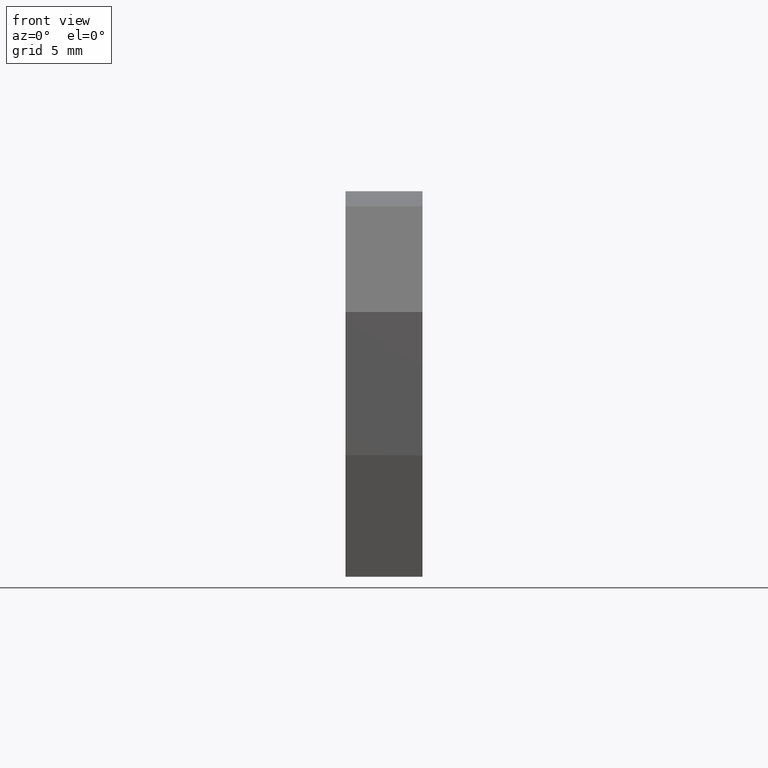
[diagram: clean part render]
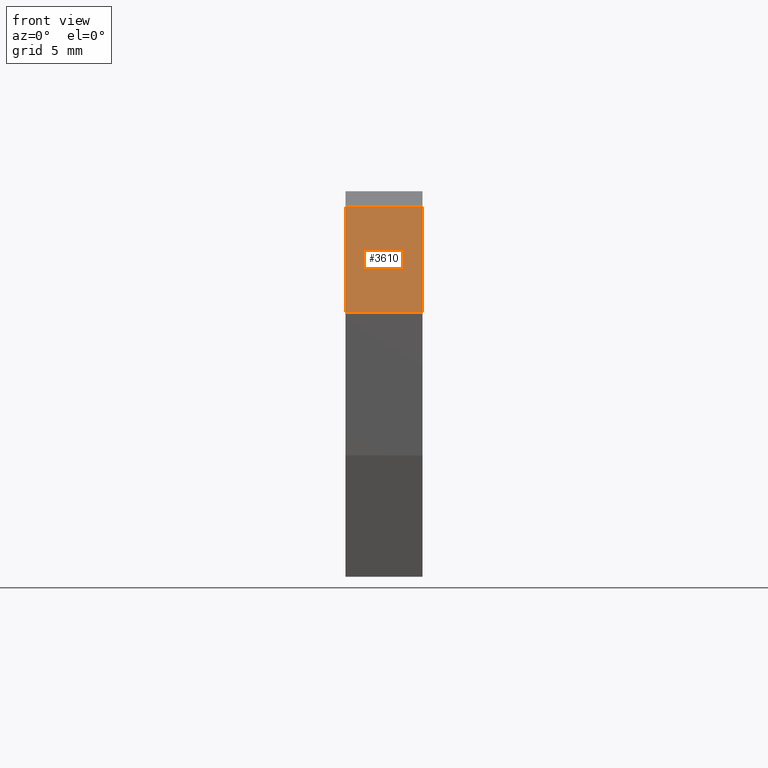
[diagram: same view with one face highlighted and labeled with its STEP entity id]
A machine part, front view. The second image highlights one B-rep face of the part: STEP entity #3610.
In plain terms, the highlighted planar face has unit normal (0, -0.866, 0.5).
Its self-contained STEP definition (entity closure, byte-faithful):
#200=CARTESIAN_POINT('',(38.471795037691,80.6770330370464,
4.00000000000001));
#210=VERTEX_POINT('',#200);
#240=CARTESIAN_POINT('',(35.2278374967297,86.2957323155951,
4.00000000000001));
#250=DIRECTION('',(-0.4999999999995,0.866025403784727,0.));
#260=VECTOR('',#250,1.);
#270=LINE('',#240,#260);
#280=CARTESIAN_POINT('',(35.305351863756,86.1614734935887,
4.00000000000001));
#290=VERTEX_POINT('',#280);
#300=EDGE_CURVE('',#210,#290,#270,.T.);
#1550=CARTESIAN_POINT('',(35.305351863756,86.1614734935887,
8.00000000000001));
#1560=VERTEX_POINT('',#1550);
#1590=CARTESIAN_POINT('',(35.2278374967297,86.2957323155951,
8.00000000000001));
#1600=DIRECTION('',(-0.4999999999995,0.866025403784727,0.));
#1610=VECTOR('',#1600,1.);
#1620=LINE('',#1590,#1610);
#1630=CARTESIAN_POINT('',(38.471795037691,80.6770330370464,
8.00000000000001));
#1640=VERTEX_POINT('',#1630);
#1650=EDGE_CURVE('',#1640,#1560,#1620,.T.);
#3050=CARTESIAN_POINT('',(38.471795037691,80.6770330370464,
4.00000000000001));
#3060=DIRECTION('',(0.,0.,-1.));
#3070=VECTOR('',#3060,1.);
#3080=LINE('',#3050,#3070);
#3090=EDGE_CURVE('',#1640,#210,#3080,.T.);
#3450=CARTESIAN_POINT('',(35.8259189143065,85.2598249132878,
4.00000000000001));
#3460=DIRECTION('',(0.866025403784727,0.4999999999995,0.));
#3470=DIRECTION('',(0.4999999999995,-0.866025403784727,0.));
#3480=AXIS2_PLACEMENT_3D('',#3450,#3460,#3470);
#3490=PLANE('',#3480);
#3500=ORIENTED_EDGE('',*,*,#3090,.T.);
#3510=ORIENTED_EDGE('',*,*,#1650,.F.);
#3520=CARTESIAN_POINT('',(35.305351863756,86.1614734935887,
4.00000000000001));
#3530=DIRECTION('',(0.,0.,-1.));
#3540=VECTOR('',#3530,1.);
#3550=LINE('',#3520,#3540);
#3560=EDGE_CURVE('',#1560,#290,#3550,.T.);
#3570=ORIENTED_EDGE('',*,*,#3560,.F.);
#3580=ORIENTED_EDGE('',*,*,#300,.T.);
#3590=EDGE_LOOP('',(#3580,#3570,#3510,#3500));
#3600=FACE_OUTER_BOUND('',#3590,.T.);
#3610=ADVANCED_FACE('',(#3600),#3490,.T.);